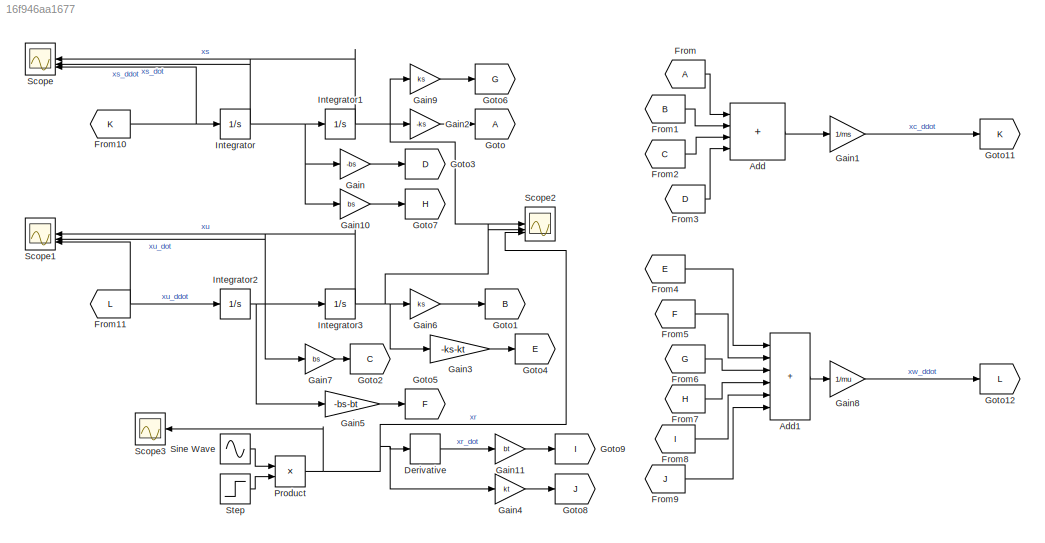
MODEL slx_16f946aa1677
KIND model
CONFIG AbsTol = auto
CONFIG EnableMultiTasking = off
CONFIG FixedStep = auto
CONFIG MaxStep = 0.0001
CONFIG MinStep = auto
CONFIG RelTol = 1e-3
CONFIG SampleTimeConstraint = Unconstrained
CONFIG SolverName = VariableStepAuto
CONFIG StartTime = 0.0
CONFIG StopTime = 10
WORKSPACE source: mxarray member
WORKSPACE bs = 1500
WORKSPACE bt = 10
WORKSPACE f = 1
WORKSPACE ks = 20000
WORKSPACE kt = 190000
WORKSPACE ms = 400
WORKSPACE mu = 48
BLOCK [Sum] Add
  IconShape = rectangular
  Inputs = ++++
BLOCK [Sum] Add1
  IconShape = rectangular
  Inputs = ++++++
BLOCK [Derivative] Derivative
BLOCK [From] From
BLOCK [From] From1
  GotoTag = B
BLOCK [From] From10
  GotoTag = K
BLOCK [From] From11
  GotoTag = L
BLOCK [From] From2
  GotoTag = C
BLOCK [From] From3
  GotoTag = D
BLOCK [From] From4
  GotoTag = E
BLOCK [From] From5
  GotoTag = F
BLOCK [From] From6
  GotoTag = G
BLOCK [From] From7
  GotoTag = H
BLOCK [From] From8
  GotoTag = I
BLOCK [From] From9
  GotoTag = J
BLOCK [Gain] Gain
  Gain = -bs
BLOCK [Gain] Gain1
  Gain = 1/ms
BLOCK [Gain] Gain10
  Gain = bs
BLOCK [Gain] Gain11
  Gain = bt
BLOCK [Gain] Gain2
  Gain = -ks
BLOCK [Gain] Gain3
  Gain = -ks-kt
BLOCK [Gain] Gain4
  Gain = kt
BLOCK [Gain] Gain5
  Gain = -bs-bt
BLOCK [Gain] Gain6
  Gain = ks
BLOCK [Gain] Gain7
  Gain = bs
BLOCK [Gain] Gain8
  Gain = 1/mu
BLOCK [Gain] Gain9
  Gain = ks
BLOCK [Goto] Goto
BLOCK [Goto] Goto1
  GotoTag = B
BLOCK [Goto] Goto11
  GotoTag = K
BLOCK [Goto] Goto12
  GotoTag = L
BLOCK [Goto] Goto2
  GotoTag = C
BLOCK [Goto] Goto3
  GotoTag = D
BLOCK [Goto] Goto4
  GotoTag = E
BLOCK [Goto] Goto5
  GotoTag = F
BLOCK [Goto] Goto6
  GotoTag = G
BLOCK [Goto] Goto7
  GotoTag = H
BLOCK [Goto] Goto8
  GotoTag = J
BLOCK [Goto] Goto9
  GotoTag = I
BLOCK [Integrator] Integrator
BLOCK [Integrator] Integrator1
BLOCK [Integrator] Integrator2
BLOCK [Integrator] Integrator3
BLOCK [Product] Product
BLOCK [Scope] Scope
  Floating = off
  NameLocation = top
  NumInputPorts = 3
  ScopeSpecificationString = Simulink.scopes.TimeScopeBlockCfg('CurrentConfiguration', extmgr.ConfigurationSet(extmgr.Configuration('Core','General UI',true),extmgr.Configuration('Core','Source UI',true),extmgr.Configuration('Sources','WiredSimulink',true),extmgr.Configuration('Visuals','Time Domain',true,'SerializedDisplays',{struct('MinYLimReal','-0.36662','MaxYLimReal','0.61228','YLabelReal','','MinYLimMag','0.00000','MaxY...<+1500ch>
BLOCK [Scope] Scope1
  Floating = off
  NameLocation = top
  NumInputPorts = 3
  ScopeSpecificationString = Simulink.scopes.TimeScopeBlockCfg('CurrentConfiguration', extmgr.ConfigurationSet(extmgr.Configuration('Core','General UI',true),extmgr.Configuration('Core','Source UI',true),extmgr.Configuration('Sources','WiredSimulink',true,'DataLoggingVariableName','ScopeData1'),extmgr.Configuration('Visuals','Time Domain',true,'SerializedDisplays',{struct('MinYLimReal','-0.86205','MaxYLimReal','0.7962','YLabe...<+1533ch>
BLOCK [Scope] Scope2
  Floating = off
  NumInputPorts = 3
  ScopeSpecificationString = Simulink.scopes.TimeScopeBlockCfg('CurrentConfiguration', extmgr.ConfigurationSet(extmgr.Configuration('Core','General UI',true,'FigureColor',[0 0 0]),extmgr.Configuration('Core','Source UI',true),extmgr.Configuration('Sources','WiredSimulink',true,'DataLoggingVariableName','ScopeData2'),extmgr.Configuration('Visuals','Time Domain',true,'SerializedDisplays',{struct('MinYLimReal','-0.02049','MaxYLi...<+1977ch>
BLOCK [Scope] Scope3
  Floating = off
  NameLocation = top
  NumInputPorts = 1
  ScopeSpecificationString = Simulink.scopes.TimeScopeBlockCfg('CurrentConfiguration', extmgr.ConfigurationSet(extmgr.Configuration('Core','General UI',true),extmgr.Configuration('Core','Source UI',true),extmgr.Configuration('Sources','WiredSimulink',true,'DataLoggingVariableName','ScopeData1'),extmgr.Configuration('Visuals','Time Domain',true,'SerializedDisplays',{struct('MinYLimReal','-0.01','MaxYLimReal','0.09','YLabelReal...<+1502ch>
BLOCK [Sin] Sine Wave
  Amplitude = 0.08
  SampleTime = 0
BLOCK [Step] Step
  After = 0
  Before = 1
  SampleTime = 0
  Time = pi
LINE Add1:1 -> Gain8:1
LINE Add:1 -> Gain1:1
LINE Derivative:1 -> Gain11:1
NET From10:1 -> Integrator:1, Scope:3
NET From11:1 -> Integrator2:1, Scope1:3
LINE From1:1 -> Add:2
LINE From2:1 -> Add:3
LINE From3:1 -> Add:4
LINE From4:1 -> Add1:1
LINE From5:1 -> Add1:2
LINE From6:1 -> Add1:3
LINE From7:1 -> Add1:4
LINE From8:1 -> Add1:5
LINE From9:1 -> Add1:6
LINE From:1 -> Add:1
LINE Gain10:1 -> Goto7:1
LINE Gain11:1 -> Goto9:1
LINE Gain1:1 -> Goto11:1
LINE Gain2:1 -> Goto:1
LINE Gain3:1 -> Goto4:1
LINE Gain4:1 -> Goto8:1
LINE Gain5:1 -> Goto5:1
LINE Gain6:1 -> Goto1:1
LINE Gain7:1 -> Goto2:1
LINE Gain8:1 -> Goto12:1
LINE Gain9:1 -> Goto6:1
LINE Gain:1 -> Goto3:1
NET Integrator1:1 -> Gain2:1, Gain9:1, Scope2:1, Scope:1
NET Integrator2:1 -> Gain5:1, Gain7:1, Integrator3:1, Scope1:2
NET Integrator3:1 -> Gain3:1, Gain6:1, Scope1:1, Scope2:2
NET Integrator:1 -> Gain10:1, Gain:1, Integrator1:1, Scope:2
NET Product:1 -> Derivative:1, Gain4:1, Scope2:3, Scope3:1
LINE Sine Wave:1 -> Product:1
LINE Step:1 -> Product:2
note: NET lines group one-source signal fan-out (src -> all destinations, sorted); 1:1 wires keep LINE
